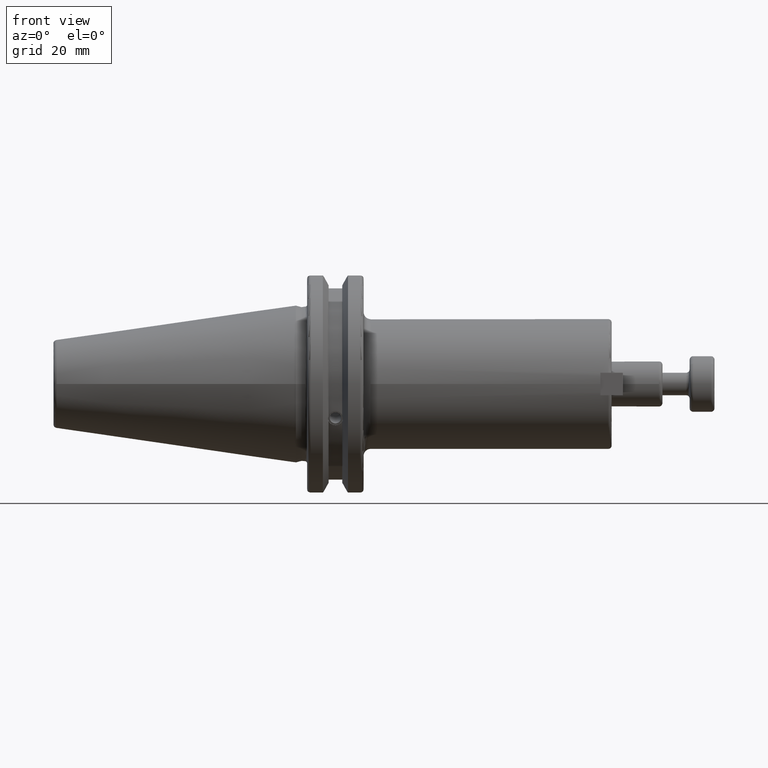
[diagram: clean part render]
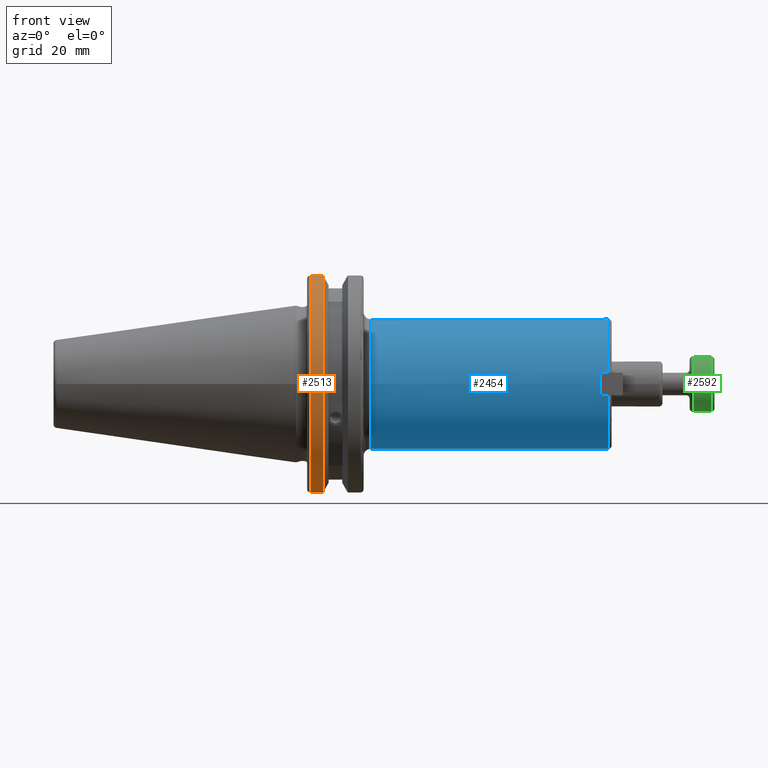
[diagram: same view with three faces highlighted in distinct colors, each labeled with its STEP entity id]
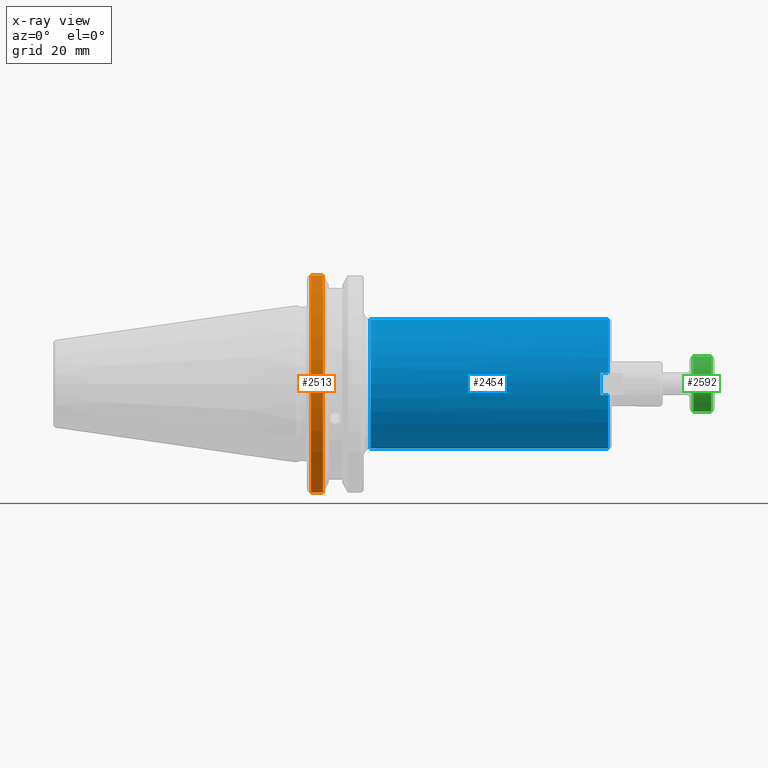
[diagram: x-ray of the same camera — body ghosted, the three highlighted faces saturated]
A machine part, front view with three faces highlighted in distinct colors.
The next image is the same camera in x-ray (body ghosted, the three faces saturated) — at least one of them is partly hidden behind the body in this view.
Their STEP definitions:

[orange] entity #2513 — the highlighted cylindrical surface (partial cylindrical patch) has radius 31.75 mm, axis along (1, 0, 0).
#134=CYLINDRICAL_SURFACE('',#2848,31.75);
#259=CIRCLE('',#2846,31.75);
#260=CIRCLE('',#2849,31.75);
#385=FACE_OUTER_BOUND('',#547,.T.);
#547=EDGE_LOOP('',(#2009,#2010,#2011,#2012));
#732=LINE('',#4533,#902);
#733=LINE('',#4539,#903);
#902=VECTOR('',#3396,10.);
#903=VECTOR('',#3399,10.);
#1170=VERTEX_POINT('',#4512);
#1171=VERTEX_POINT('',#4521);
#1172=VERTEX_POINT('',#4532);
#1173=VERTEX_POINT('',#4538);
#1477=EDGE_CURVE('',#1170,#1171,#259,.T.);
#1479=EDGE_CURVE('',#1171,#1172,#732,.T.);
#1481=EDGE_CURVE('',#1173,#1170,#733,.T.);
#1482=EDGE_CURVE('',#1172,#1173,#260,.T.);
#2009=ORIENTED_EDGE('',*,*,#1477,.F.);
#2010=ORIENTED_EDGE('',*,*,#1481,.F.);
#2011=ORIENTED_EDGE('',*,*,#1482,.F.);
#2012=ORIENTED_EDGE('',*,*,#1479,.F.);
#2513=ADVANCED_FACE('',(#385),#134,.T.);
#2846=AXIS2_PLACEMENT_3D('',#4522,#3392,#3393);
#2848=AXIS2_PLACEMENT_3D('',#4537,#3397,#3398);
#2849=AXIS2_PLACEMENT_3D('',#4540,#3400,#3401);
#3392=DIRECTION('center_axis',(-1.,0.,0.));
#3393=DIRECTION('ref_axis',(0.,-1.,1.60812264967664E-16));
#3396=DIRECTION('',(1.,0.,0.));
#3397=DIRECTION('center_axis',(1.,0.,0.));
#3398=DIRECTION('ref_axis',(0.,-1.,1.22464679914735E-16));
#3399=DIRECTION('',(-1.,0.,0.));
#3400=DIRECTION('center_axis',(1.,0.,0.));
#3401=DIRECTION('ref_axis',(0.,0.,-1.));
#4512=CARTESIAN_POINT('',(4.175,-8.67204822802685,-30.5427254764662));
#4521=CARTESIAN_POINT('',(4.175,-8.67204822802685,30.5427254764662));
#4522=CARTESIAN_POINT('Origin',(4.175,0.,0.));
#4532=CARTESIAN_POINT('',(7.60793323092436,-8.67204822802685,30.5427254764662));
#4533=CARTESIAN_POINT('',(5.39146661546218,-8.67204822802685,30.5427254764662));
#4537=CARTESIAN_POINT('Origin',(5.39146661546218,0.,0.));
#4538=CARTESIAN_POINT('',(7.60793323092436,-8.67204822802685,-30.5427254764662));
#4539=CARTESIAN_POINT('',(5.39146661546218,-8.67204822802685,-30.5427254764662));
#4540=CARTESIAN_POINT('Origin',(7.60793323092436,0.,0.));

[blue] entity #2454 — the highlighted cylindrical surface (bore or boss wall) has radius 18.265 mm, axis along (1, 0, 0).
#111=CYLINDRICAL_SURFACE('',#2710,18.265);
#193=CIRCLE('',#2700,18.265);
#195=CIRCLE('',#2702,18.265);
#199=CIRCLE('',#2711,18.265);
#200=CIRCLE('',#2712,18.265);
#201=CIRCLE('',#2713,18.265);
#202=CIRCLE('',#2714,18.265);
#203=CIRCLE('',#2715,18.265);
#326=FACE_OUTER_BOUND('',#474,.T.);
#474=EDGE_LOOP('',(#1658,#1659,#1660,#1661,#1662,#1663,#1664,#1665,#1666,
#1667,#1668,#1669,#1670));
#642=LINE('',#3796,#812);
#647=LINE('',#3831,#817);
#649=LINE('',#3835,#819);
#650=LINE('',#3842,#820);
#651=LINE('',#3846,#821);
#812=VECTOR('',#3008,10.);
#817=VECTOR('',#3035,10.);
#819=VECTOR('',#3039,18.265);
#820=VECTOR('',#3046,10.);
#821=VECTOR('',#3049,10.);
#1014=VERTEX_POINT('',#3779);
#1017=VERTEX_POINT('',#3794);
#1018=VERTEX_POINT('',#3798);
#1020=VERTEX_POINT('',#3802);
#1025=VERTEX_POINT('',#3819);
#1027=VERTEX_POINT('',#3834);
#1028=VERTEX_POINT('',#3836);
#1029=VERTEX_POINT('',#3839);
#1030=VERTEX_POINT('',#3841);
#1031=VERTEX_POINT('',#3843);
#1032=VERTEX_POINT('',#3845);
#1263=EDGE_CURVE('',#1014,#1017,#642,.T.);
#1264=EDGE_CURVE('',#1017,#1018,#193,.T.);
#1267=EDGE_CURVE('',#1018,#1020,#195,.T.);
#1275=EDGE_CURVE('',#1020,#1025,#647,.T.);
#1277=EDGE_CURVE('',#1018,#1027,#649,.T.);
#1278=EDGE_CURVE('',#1028,#1027,#199,.T.);
#1279=EDGE_CURVE('',#1027,#1028,#200,.T.);
#1280=EDGE_CURVE('',#1029,#1025,#201,.T.);
#1281=EDGE_CURVE('',#1029,#1030,#650,.T.);
#1282=EDGE_CURVE('',#1030,#1031,#202,.T.);
#1283=EDGE_CURVE('',#1031,#1032,#651,.T.);
#1284=EDGE_CURVE('',#1014,#1032,#203,.T.);
#1658=ORIENTED_EDGE('',*,*,#1263,.T.);
#1659=ORIENTED_EDGE('',*,*,#1264,.T.);
#1660=ORIENTED_EDGE('',*,*,#1277,.T.);
#1661=ORIENTED_EDGE('',*,*,#1278,.F.);
#1662=ORIENTED_EDGE('',*,*,#1279,.F.);
#1663=ORIENTED_EDGE('',*,*,#1277,.F.);
#1664=ORIENTED_EDGE('',*,*,#1267,.T.);
#1665=ORIENTED_EDGE('',*,*,#1275,.T.);
#1666=ORIENTED_EDGE('',*,*,#1280,.F.);
#1667=ORIENTED_EDGE('',*,*,#1281,.T.);
#1668=ORIENTED_EDGE('',*,*,#1282,.T.);
#1669=ORIENTED_EDGE('',*,*,#1283,.T.);
#1670=ORIENTED_EDGE('',*,*,#1284,.F.);
#2454=ADVANCED_FACE('',(#326),#111,.T.);
#2700=AXIS2_PLACEMENT_3D('',#3799,#3011,#3012);
#2702=AXIS2_PLACEMENT_3D('',#3804,#3016,#3017);
#2710=AXIS2_PLACEMENT_3D('',#3833,#3037,#3038);
#2711=AXIS2_PLACEMENT_3D('',#3837,#3040,#3041);
#2712=AXIS2_PLACEMENT_3D('',#3838,#3042,#3043);
#2713=AXIS2_PLACEMENT_3D('',#3840,#3044,#3045);
#2714=AXIS2_PLACEMENT_3D('',#3844,#3047,#3048);
#2715=AXIS2_PLACEMENT_3D('',#3847,#3050,#3051);
#3008=DIRECTION('',(-1.,0.,0.));
#3011=DIRECTION('center_axis',(-1.,0.,0.));
#3012=DIRECTION('ref_axis',(0.,1.,0.));
#3016=DIRECTION('center_axis',(-1.,0.,0.));
#3017=DIRECTION('ref_axis',(0.,1.,0.));
#3035=DIRECTION('',(1.,0.,0.));
#3037=DIRECTION('center_axis',(1.,0.,0.));
#3038=DIRECTION('ref_axis',(0.,1.,0.));
#3039=DIRECTION('',(-1.,0.,0.));
#3040=DIRECTION('center_axis',(-1.,0.,0.));
#3041=DIRECTION('ref_axis',(0.,-1.,-1.22464679914735E-16));
#3042=DIRECTION('center_axis',(-1.,0.,0.));
#3043=DIRECTION('ref_axis',(0.,-1.,-1.22464679914735E-16));
#3044=DIRECTION('center_axis',(1.,0.,0.));
#3045=DIRECTION('ref_axis',(0.,-1.,1.83697019872103E-16));
#3046=DIRECTION('',(-1.,0.,0.));
#3047=DIRECTION('center_axis',(-1.,0.,0.));
#3048=DIRECTION('ref_axis',(0.,1.,0.));
#3049=DIRECTION('',(1.,0.,0.));
#3050=DIRECTION('center_axis',(1.,0.,0.));
#3051=DIRECTION('ref_axis',(0.,-1.,1.83697019872103E-16));
#3779=CARTESIAN_POINT('',(87.9,-17.9869285871713,-3.175));
#3794=CARTESIAN_POINT('',(85.7,-17.9869285871713,-3.175));
#3796=CARTESIAN_POINT('',(53.975,-17.9869285871713,-3.175));
#3798=CARTESIAN_POINT('',(85.7,-18.265,-2.23681737864264E-15));
#3799=CARTESIAN_POINT('Origin',(85.7,0.,0.));
#3802=CARTESIAN_POINT('',(85.7,-17.9869285871713,3.175));
#3804=CARTESIAN_POINT('Origin',(85.7,0.,0.));
#3819=CARTESIAN_POINT('',(87.9,-17.9869285871713,3.175));
#3831=CARTESIAN_POINT('',(53.975,-17.9869285871713,3.175));
#3833=CARTESIAN_POINT('Origin',(53.975,0.,0.));
#3834=CARTESIAN_POINT('',(21.05,-18.265,-2.23681737864264E-15));
#3835=CARTESIAN_POINT('',(53.975,-18.265,-2.23681737864264E-15));
#3836=CARTESIAN_POINT('',(21.05,-2.23681737864264E-15,-18.265));
#3837=CARTESIAN_POINT('Origin',(21.05,0.,0.));
#3838=CARTESIAN_POINT('Origin',(21.05,0.,0.));
#3839=CARTESIAN_POINT('',(87.9,17.9869285871713,3.175));
#3840=CARTESIAN_POINT('Origin',(87.9,0.,0.));
#3841=CARTESIAN_POINT('',(85.7,17.9869285871713,3.175));
#3842=CARTESIAN_POINT('',(53.975,17.9869285871713,3.175));
#3843=CARTESIAN_POINT('',(85.7,17.9869285871713,-3.175));
#3844=CARTESIAN_POINT('Origin',(85.7,0.,0.));
#3845=CARTESIAN_POINT('',(87.9,17.9869285871713,-3.175));
#3846=CARTESIAN_POINT('',(53.975,17.9869285871713,-3.175));
#3847=CARTESIAN_POINT('Origin',(87.9,0.,0.));

[green] entity #2592 — the highlighted cylindrical surface (bore or boss wall) has radius 7.85 mm, axis along (-1, 0, 0).
#149=CYLINDRICAL_SURFACE('',#2986,7.85);
#314=CIRCLE('',#2984,7.85);
#315=CIRCLE('',#2985,7.85);
#316=CIRCLE('',#2987,7.85);
#317=CIRCLE('',#2988,7.85);
#464=FACE_OUTER_BOUND('',#635,.T.);
#635=EDGE_LOOP('',(#2357,#2358,#2359,#2360,#2361,#2362));
#808=LINE('',#4890,#978);
#978=VECTOR('',#3750,7.85);
#1254=VERTEX_POINT('',#4883);
#1255=VERTEX_POINT('',#4885);
#1256=VERTEX_POINT('',#4889);
#1257=VERTEX_POINT('',#4891);
#1624=EDGE_CURVE('',#1254,#1255,#314,.T.);
#1625=EDGE_CURVE('',#1255,#1254,#315,.T.);
#1626=EDGE_CURVE('',#1255,#1256,#808,.T.);
#1627=EDGE_CURVE('',#1257,#1256,#316,.T.);
#1628=EDGE_CURVE('',#1256,#1257,#317,.T.);
#2357=ORIENTED_EDGE('',*,*,#1625,.F.);
#2358=ORIENTED_EDGE('',*,*,#1626,.T.);
#2359=ORIENTED_EDGE('',*,*,#1627,.F.);
#2360=ORIENTED_EDGE('',*,*,#1628,.F.);
#2361=ORIENTED_EDGE('',*,*,#1626,.F.);
#2362=ORIENTED_EDGE('',*,*,#1624,.F.);
#2592=ADVANCED_FACE('',(#464),#149,.T.);
#2984=AXIS2_PLACEMENT_3D('',#4886,#3744,#3745);
#2985=AXIS2_PLACEMENT_3D('',#4887,#3746,#3747);
#2986=AXIS2_PLACEMENT_3D('',#4888,#3748,#3749);
#2987=AXIS2_PLACEMENT_3D('',#4892,#3751,#3752);
#2988=AXIS2_PLACEMENT_3D('',#4893,#3753,#3754);
#3744=DIRECTION('center_axis',(1.,0.,0.));
#3745=DIRECTION('ref_axis',(0.,-1.,1.83697019872103E-16));
#3746=DIRECTION('center_axis',(1.,0.,0.));
#3747=DIRECTION('ref_axis',(0.,-1.,1.83697019872103E-16));
#3748=DIRECTION('center_axis',(1.,0.,0.));
#3749=DIRECTION('ref_axis',(0.,1.,0.));
#3750=DIRECTION('',(-1.,0.,0.));
#3751=DIRECTION('center_axis',(-1.,0.,0.));
#3752=DIRECTION('ref_axis',(0.,-1.,1.83697019872103E-16));
#3753=DIRECTION('center_axis',(-1.,0.,0.));
#3754=DIRECTION('ref_axis',(0.,-1.,1.83697019872103E-16));
#4883=CARTESIAN_POINT('',(6.,-9.61347737330673E-16,7.85));
#4885=CARTESIAN_POINT('',(6.,-7.85,-9.61347737330673E-16));
#4886=CARTESIAN_POINT('Origin',(6.,0.,0.));
#4887=CARTESIAN_POINT('Origin',(6.,0.,0.));
#4888=CARTESIAN_POINT('Origin',(3.5,0.,0.));
#4889=CARTESIAN_POINT('',(1.,-7.85,-9.61347737330673E-16));
#4890=CARTESIAN_POINT('',(3.5,-7.85,-9.61347737330673E-16));
#4891=CARTESIAN_POINT('',(1.,-9.61347737330673E-16,7.85));
#4892=CARTESIAN_POINT('Origin',(1.,0.,0.));
#4893=CARTESIAN_POINT('Origin',(1.,0.,0.));